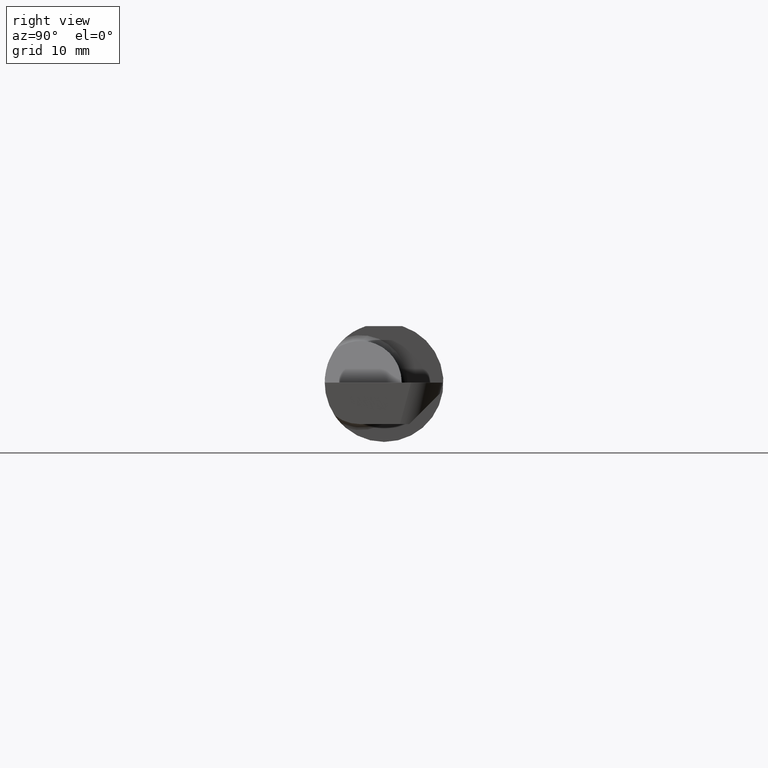
[diagram: clean part render]
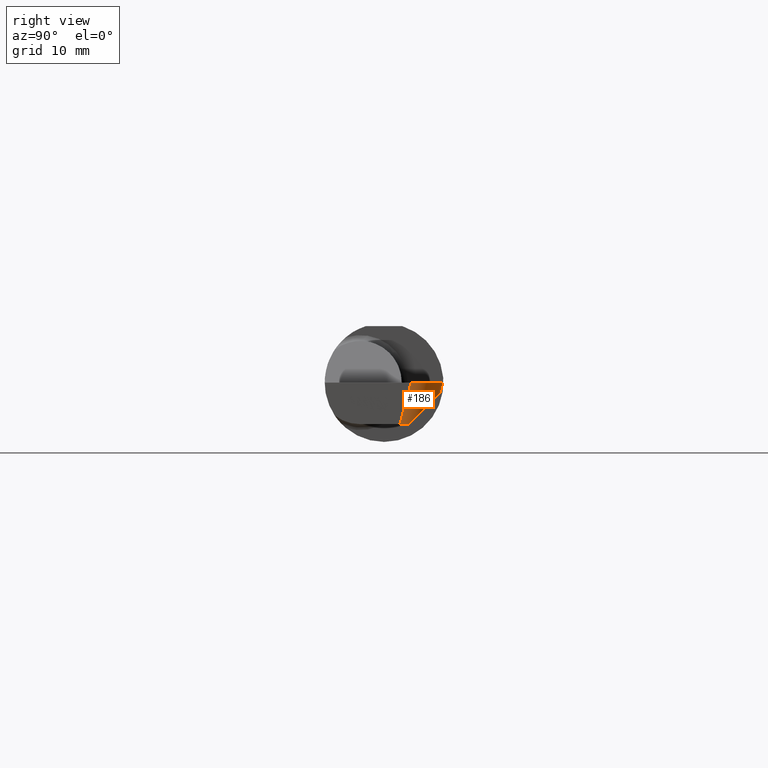
[diagram: same view with one face highlighted and labeled with its STEP entity id]
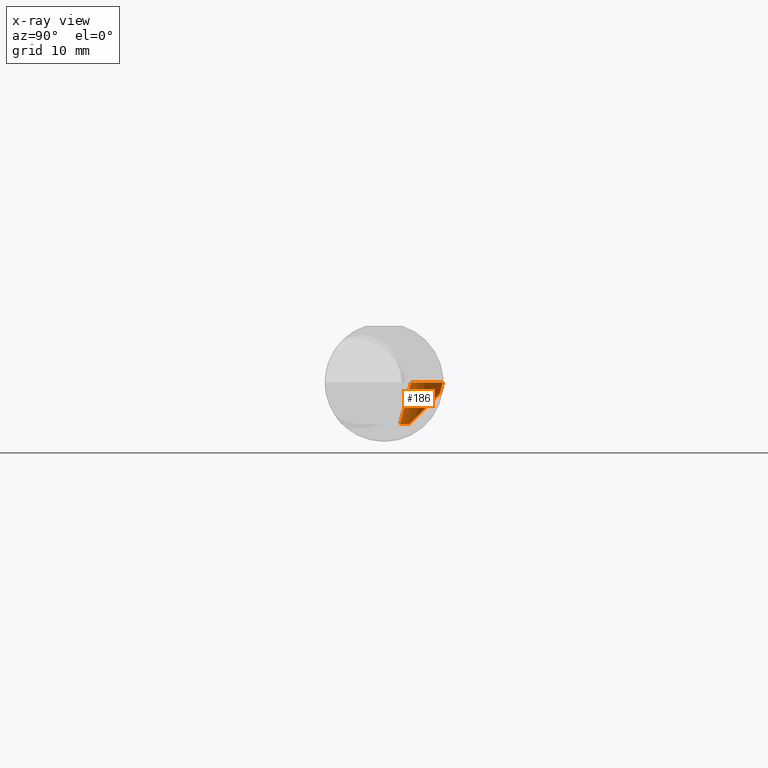
[diagram: x-ray of the same camera — body ghosted, the highlighted face saturated]
A machine part, right view. The second image highlights one B-rep face of the part: STEP entity #186.
The next image is the same camera in x-ray: the body ghosted, the highlighted face saturated — about 0% of this face is hidden behind the body in this view.
In plain terms, the highlighted cylindrical surface (edge-blend (fillet) strip) has radius 3.1877 mm, axis along (-0.0259, -0.2587, -0.9656).
Its self-contained STEP definition (entity closure, byte-faithful):
#16 = CARTESIAN_POINT ( 'NONE',  ( 2.990641147540828104, 0.1058243371481696476, -0.1750000000000001277 ) ) ;
#20 = CARTESIAN_POINT ( 'NONE',  ( 3.002511784637379222, 0.1912804032740405558, -7.160714913043396685E-18 ) ) ;
#25 = ORIENTED_EDGE ( 'NONE', *, *, #616, .F. ) ;
#35 = DIRECTION ( 'NONE',  ( -0.02590004391968268177, -0.2587322210431824421, -0.9656017944882975268 ) ) ;
#50 = FACE_OUTER_BOUND ( 'NONE', #403, .T. ) ;
#56 = EDGE_CURVE ( 'NONE', #509, #225, #710, .T. ) ;
#79 = CARTESIAN_POINT ( 'NONE',  ( 2.995563461189592047, 0.07983311256960280711, -0.1750000000000001277 ) ) ;
#90 = CARTESIAN_POINT ( 'NONE',  ( 2.932279805067559586, 0.2348243371481688047, -0.04599999999999949962 ) ) ;
#95 =( BOUNDED_CURVE ( )  B_SPLINE_CURVE ( 3, ( #375, #416, #79, #364 ),
 .UNSPECIFIED., .F., .T. ) 
 B_SPLINE_CURVE_WITH_KNOTS ( ( 4, 4 ),
 ( 4.339337998362998050, 4.645220385064936508 ),
 .UNSPECIFIED. ) 
 CURVE ( )  GEOMETRIC_REPRESENTATION_ITEM ( )  RATIONAL_B_SPLINE_CURVE ( ( 1.000000000000000000, 0.9922181835937360361, 0.9922181835937360361, 1.000000000000000000 ) ) 
 REPRESENTATION_ITEM ( '' )  );
#97 = ORIENTED_EDGE ( 'NONE', *, *, #56, .F. ) ;
#116 = CARTESIAN_POINT ( 'NONE',  ( 2.990641147540828104, 0.1058243371481696476, -0.1750000000000001277 ) ) ;
#118 = VERTEX_POINT ( 'NONE', #640 ) ;
#125 = VECTOR ( 'NONE', #35, 39.37007874015748854 ) ;
#147 = ORIENTED_EDGE ( 'NONE', *, *, #455, .F. ) ;
#153 = CARTESIAN_POINT ( 'NONE',  ( 2.873271171754832487, 0.2278691044638435637, -0.07195728175636369184 ) ) ;
#186 = ADVANCED_FACE ( 'NONE', ( #50 ), #284, .T. ) ;
#193 = CARTESIAN_POINT ( 'NONE',  ( 2.999793206199442785, 0.1134305025558126345, 0.000000000000000000 ) ) ;
#220 = DIRECTION ( 'NONE',  ( 0.000000000000000000, 0.9659258262890680902, -0.2588190451025210170 ) ) ;
#225 = VERTEX_POINT ( 'NONE', #622 ) ;
#250 = VECTOR ( 'NONE', #414, 39.37007874015748854 ) ;
#284 = CYLINDRICAL_SURFACE ( 'NONE', #530, 0.1255000000000000004 ) ;
#334 = LINE ( 'NONE', #153, #125 ) ;
#335 = DIRECTION ( 'NONE',  ( -0.02590004391968268177, -0.2587322210431824976, -0.9656017944882975268 ) ) ;
#339 = ORIENTED_EDGE ( 'NONE', *, *, #512, .F. ) ;
#348 = CARTESIAN_POINT ( 'NONE',  ( 2.875201260087795863, 0.2471499999999999808, 0.000000000000000000 ) ) ;
#364 = CARTESIAN_POINT ( 'NONE',  ( 2.995099234303557623, 0.06653939388036607394, -0.1750000000000001277 ) ) ;
#375 = CARTESIAN_POINT ( 'NONE',  ( 2.990641147540828104, 0.1058243371481696476, -0.1750000000000001277 ) ) ;
#381 = CARTESIAN_POINT ( 'NONE',  ( 2.873271171754832487, 0.1066454132645655029, -0.03947549159599728769 ) ) ;
#386 =( BOUNDED_CURVE ( )  B_SPLINE_CURVE ( 3, ( #606, #90, #692, #116 ),
 .UNSPECIFIED., .F., .T. ) 
 B_SPLINE_CURVE_WITH_KNOTS ( ( 4, 4 ),
 ( 3.126640370658172241, 4.420746632591429304 ),
 .UNSPECIFIED. ) 
 CURVE ( )  GEOMETRIC_REPRESENTATION_ITEM ( )  RATIONAL_B_SPLINE_CURVE ( ( 1.000000000000000000, 0.8652424962921507756, 0.8652424962921507756, 1.000000000000000000 ) ) 
 REPRESENTATION_ITEM ( '' )  );
#403 = EDGE_LOOP ( 'NONE', ( #339, #97, #147, #691, #25 ) ) ;
#409 = CARTESIAN_POINT ( 'NONE',  ( 2.999818293584536999, 0.1136811166044124077, 0.0009353043624648335131 ) ) ;
#414 = DIRECTION ( 'NONE',  ( 0.02590004391968268524, 0.2587322210431824976, 0.9656017944882975268 ) ) ;
#416 = CARTESIAN_POINT ( 'NONE',  ( 2.994065777569717479, 0.09303079560524193936, -0.1750000000000001277 ) ) ;
#418 = CARTESIAN_POINT ( 'NONE',  ( 2.950455787437228139, 0.2471500000000003971, -7.856938782845208821E-19 ) ) ;
#444 = VERTEX_POINT ( 'NONE', #16 ) ;
#455 = EDGE_CURVE ( 'NONE', #444, #509, #95, .T. ) ;
#509 = VERTEX_POINT ( 'NONE', #596 ) ;
#512 = EDGE_CURVE ( 'NONE', #225, #713, #658, .T. ) ;
#530 = AXIS2_PLACEMENT_3D ( 'NONE', #381, #335, #220 ) ;
#596 = CARTESIAN_POINT ( 'NONE',  ( 2.995099234303557623, 0.06653939388036607394, -0.1750000000000001277 ) ) ;
#606 = CARTESIAN_POINT ( 'NONE',  ( 2.873967416046591783, 0.2348243371481683328, -0.04599999999999999922 ) ) ;
#616 = EDGE_CURVE ( 'NONE', #713, #118, #334, .T. ) ;
#622 = CARTESIAN_POINT ( 'NONE',  ( 2.999793206199442785, 0.1134305025558126345, 0.000000000000000000 ) ) ;
#640 = CARTESIAN_POINT ( 'NONE',  ( 2.873967416046591783, 0.2348243371481683328, -0.04599999999999999922 ) ) ;
#650 = CARTESIAN_POINT ( 'NONE',  ( 2.875201260087795863, 0.2471499999999999808, 0.000000000000000000 ) ) ;
#658 =( BOUNDED_CURVE ( )  B_SPLINE_CURVE ( 3, ( #193, #20, #418, #650 ),
 .UNSPECIFIED., .F., .T. ) 
 B_SPLINE_CURVE_WITH_KNOTS ( ( 4, 4 ),
 ( 1.637964922114649058, 3.237953570749844356 ),
 .UNSPECIFIED. ) 
 CURVE ( )  GEOMETRIC_REPRESENTATION_ITEM ( )  RATIONAL_B_SPLINE_CURVE ( ( 1.000000000000000000, 0.7978071872141900833, 0.7978071872141900833, 1.000000000000000000 ) ) 
 REPRESENTATION_ITEM ( '' )  );
#683 = EDGE_CURVE ( 'NONE', #118, #444, #386, .T. ) ;
#691 = ORIENTED_EDGE ( 'NONE', *, *, #683, .F. ) ;
#692 = CARTESIAN_POINT ( 'NONE',  ( 2.977228179653960805, 0.1851272866862821997, -0.09569705046188667352 ) ) ;
#710 = LINE ( 'NONE', #409, #250 ) ;
#713 = VERTEX_POINT ( 'NONE', #348 ) ;